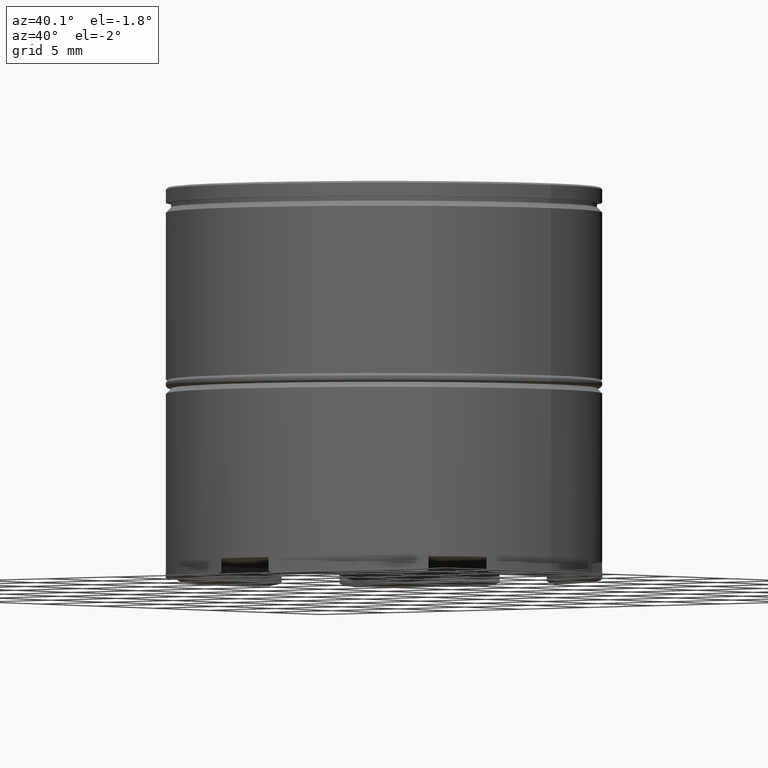
[diagram: clean part render]
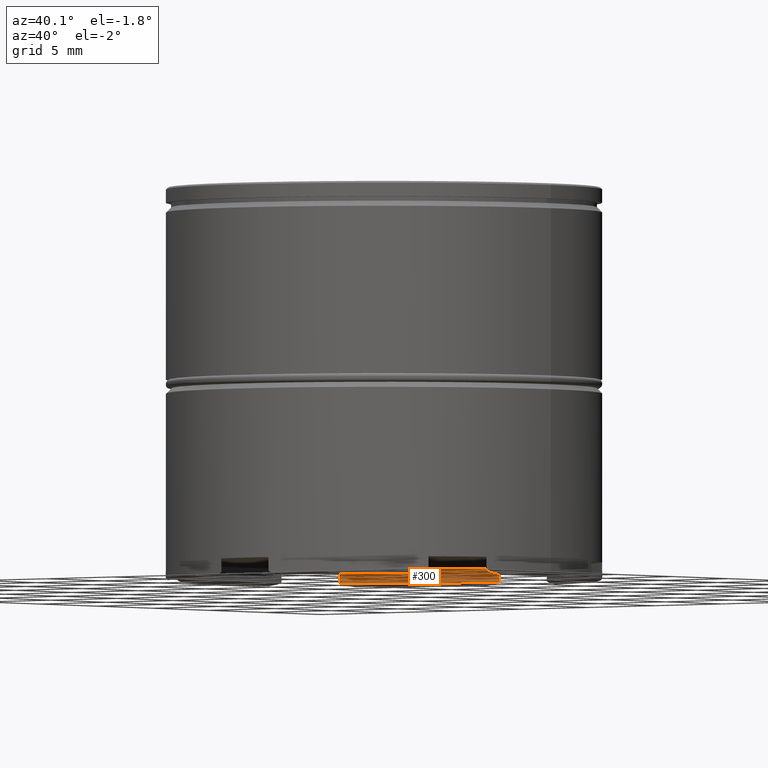
[diagram: same view with one face highlighted and labeled with its STEP entity id]
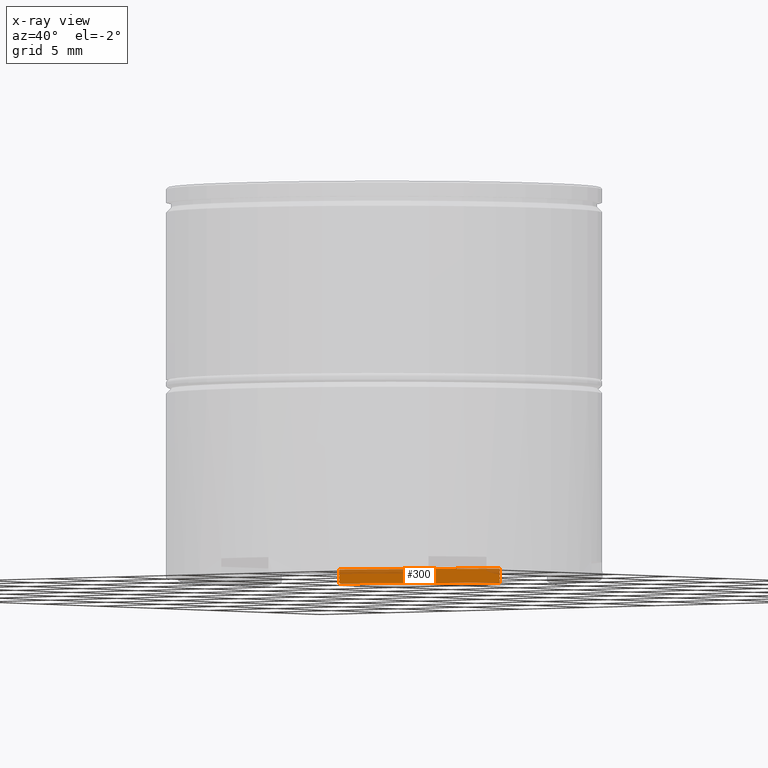
[diagram: x-ray of the same camera — body ghosted, the highlighted face saturated]
A machine part, auxiliary view. The second image highlights one B-rep face of the part: STEP entity #300.
The next image is the same camera in x-ray: the body ghosted, the highlighted face saturated — about 19% of this face is hidden behind the body in this view.
In plain terms, the highlighted planar face has unit normal (-0.5, 0.866, 0).
Its self-contained STEP definition (entity closure, byte-faithful):
#44 = EDGE_CURVE ( 'NONE', #624, #870, #663, .T. ) ;
#53 = LINE ( 'NONE', #168, #487 ) ;
#114 = EDGE_CURVE ( 'NONE', #372, #870, #53, .T. ) ;
#168 = CARTESIAN_POINT ( 'NONE',  ( -11.60000000000000675, 6.697263122599663276, -21.50000000000000000 ) ) ;
#173 = ORIENTED_EDGE ( 'NONE', *, *, #1354, .T. ) ;
#279 = DIRECTION ( 'NONE',  ( 0.000000000000000000, 0.000000000000000000, -1.000000000000000000 ) ) ;
#300 = ADVANCED_FACE ( 'NONE', ( #333 ), #608, .F. ) ;
#333 = FACE_OUTER_BOUND ( 'NONE', #1253, .T. ) ;
#363 = CARTESIAN_POINT ( 'NONE',  ( -1.766701102075377561, 12.37452088833849295, -22.29999999999999361 ) ) ;
#372 = VERTEX_POINT ( 'NONE', #872 ) ;
#412 = AXIS2_PLACEMENT_3D ( 'NONE', #596, #1102, #1585 ) ;
#448 = VECTOR ( 'NONE', #279, 1000.000000000000000 ) ;
#452 = LINE ( 'NONE', #1411, #448 ) ;
#487 = VECTOR ( 'NONE', #929, 1000.000000000000000 ) ;
#498 = DIRECTION ( 'NONE',  ( 0.8660254037844388186, 0.4999999999999996669, 0.000000000000000000 ) ) ;
#562 = CARTESIAN_POINT ( 'NONE',  ( -1.766701102075377561, 12.37452088833849295, -21.50000000000000000 ) ) ;
#596 = CARTESIAN_POINT ( 'NONE',  ( -11.60000000000000675, 6.697263122599663276, -21.50000000000000000 ) ) ;
#608 = PLANE ( 'NONE',  #412 ) ;
#624 = VERTEX_POINT ( 'NONE', #363 ) ;
#663 = LINE ( 'NONE', #1159, #703 ) ;
#702 = VECTOR ( 'NONE', #498, 1000.000000000000000 ) ;
#703 = VECTOR ( 'NONE', #1357, 1000.000000000000000 ) ;
#870 = VERTEX_POINT ( 'NONE', #562 ) ;
#872 = CARTESIAN_POINT ( 'NONE',  ( -9.833298897924620974, 7.717268479460495101, -21.50000000000000000 ) ) ;
#874 = LINE ( 'NONE', #992, #702 ) ;
#929 = DIRECTION ( 'NONE',  ( 0.8660254037844388186, 0.4999999999999997224, 0.000000000000000000 ) ) ;
#987 = ORIENTED_EDGE ( 'NONE', *, *, #44, .T. ) ;
#992 = CARTESIAN_POINT ( 'NONE',  ( -2.005266807797945638, 12.23678491392015566, -22.29999999999999361 ) ) ;
#1019 = ORIENTED_EDGE ( 'NONE', *, *, #1055, .T. ) ;
#1047 = CARTESIAN_POINT ( 'NONE',  ( -9.833298897924620974, 7.717268479460495101, -22.29999999999999361 ) ) ;
#1055 = EDGE_CURVE ( 'NONE', #1306, #624, #874, .T. ) ;
#1102 = DIRECTION ( 'NONE',  ( -0.4999999999999996669, 0.8660254037844388186, 0.000000000000000000 ) ) ;
#1159 = CARTESIAN_POINT ( 'NONE',  ( -1.766701102075377561, 12.37452088833849295, 0.000000000000000000 ) ) ;
#1253 = EDGE_LOOP ( 'NONE', ( #173, #1019, #987, #1499 ) ) ;
#1306 = VERTEX_POINT ( 'NONE', #1047 ) ;
#1354 = EDGE_CURVE ( 'NONE', #372, #1306, #452, .T. ) ;
#1357 = DIRECTION ( 'NONE',  ( -0.000000000000000000, -0.000000000000000000, 1.000000000000000000 ) ) ;
#1411 = CARTESIAN_POINT ( 'NONE',  ( -9.833298897924620974, 7.717268479460495101, 0.000000000000000000 ) ) ;
#1499 = ORIENTED_EDGE ( 'NONE', *, *, #114, .F. ) ;
#1585 = DIRECTION ( 'NONE',  ( -0.8660254037844388186, -0.4999999999999996669, 0.000000000000000000 ) ) ;